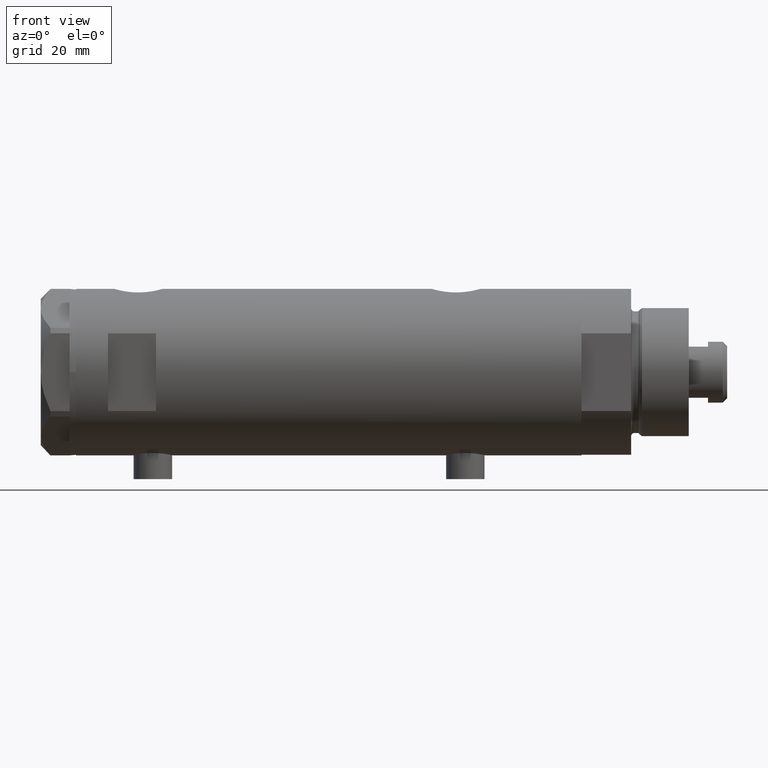
[diagram: clean part render]
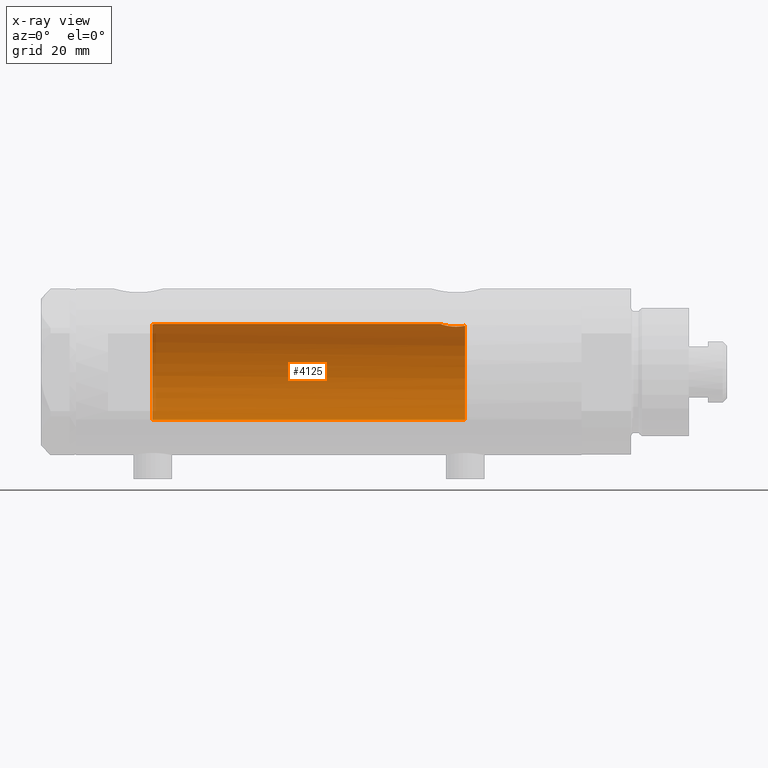
[diagram: x-ray — body ghosted, one internal face saturated and labeled with its STEP entity id]
A machine part, front view, then the same camera in x-ray: the body is ghosted and one INTERNAL B-rep face — a face not visible from any outside direction — is saturated and labeled: STEP entity #4125.
In plain terms, the highlighted cylindrical surface (partial cylindrical patch) has radius 15 mm, axis along (1, 0, -0).
Its self-contained STEP definition (entity closure, byte-faithful):
#244 = VERTEX_POINT ( 'NONE', #4537 ) ;
#251 = CARTESIAN_POINT ( 'NONE',  ( 14.49939476291675078, 3.855488469592460277, -36.74998822577914837 ) ) ;
#301 = CARTESIAN_POINT ( 'NONE',  ( 14.93895715383719569, 1.365440931094926480, 54.77638192761232716 ) ) ;
#303 = CARTESIAN_POINT ( 'NONE',  ( 14.25831405531604545, 4.659025730769700502, -41.16798855846089822 ) ) ;
#345 = CARTESIAN_POINT ( 'NONE',  ( 14.30778609824508152, 4.504821240468950272, -37.89964104205774476 ) ) ;
#388 = CARTESIAN_POINT ( 'NONE',  ( 14.82638779339053947, 2.275571356824483082, 55.15000000000000568 ) ) ;
#400 = EDGE_CURVE ( 'NONE', #4607, #2785, #2811, .T. ) ;
#405 = CARTESIAN_POINT ( 'NONE',  ( 0.000000000000000000, 0.000000000000000000, 55.15000000000000568 ) ) ;
#657 = CARTESIAN_POINT ( 'NONE',  ( 14.23822651595894584, 4.719656459720482644, -40.95110225956646843 ) ) ;
#663 = DIRECTION ( 'NONE',  ( 0.000000000000000000, 0.000000000000000000, -1.000000000000000000 ) ) ;
#674 = ORIENTED_EDGE ( 'NONE', *, *, #3861, .F. ) ;
#706 = CARTESIAN_POINT ( 'NONE',  ( 14.42780822725581125, 4.105572710089619548, -42.36940228115440732 ) ) ;
#730 = CARTESIAN_POINT ( 'NONE',  ( 14.18274079043653124, 4.883732009304969424, -39.63167541567704433 ) ) ;
#844 = ORIENTED_EDGE ( 'NONE', *, *, #4610, .T. ) ;
#940 = B_SPLINE_CURVE_WITH_KNOTS ( 'NONE', 3,
 ( #1849, #3311, #3646, #2217, #1452, #1067, #3233, #4409, #2125, #4460, #2564, #251, #4044, #3691, #345, #2535, #3334, #4067, #730, #1024, #1431, #657, #303, #2956, #2925, #2979, #706, #1746 ),
 .UNSPECIFIED., .F., .F.,
 ( 4, 2, 2, 2, 2, 2, 2, 2, 2, 2, 2, 2, 2, 4 ),
 ( 0.01531448496322443745, 0.01597936247866482348, 0.01664423999410521299, 0.01730911750954559902, 0.01797399502498598853, 0.01930375005586676060, 0.02063350508674753614, 0.02129838260218791524, 0.02196326011762829433, 0.02329301514850904906, 0.02395789266394942815, 0.02462277017938980378, 0.02528764769483018288, 0.02595252521027056197 ),
 .UNSPECIFIED. ) ;
#950 = ORIENTED_EDGE ( 'NONE', *, *, #1355, .F. ) ;
#1024 = CARTESIAN_POINT ( 'NONE',  ( 14.19789541567450364, 4.839422427565552631, -40.29531557750247117 ) ) ;
#1067 = CARTESIAN_POINT ( 'NONE',  ( 14.92306512695867049, 1.532295990539004116, -35.12730056478244478 ) ) ;
#1222 = AXIS2_PLACEMENT_3D ( 'NONE', #4822, #663, #1437 ) ;
#1355 = EDGE_CURVE ( 'NONE', #2785, #244, #2014, .T. ) ;
#1431 = CARTESIAN_POINT ( 'NONE',  ( 14.20808274384303971, 4.809639920165276195, -40.51496246579131366 ) ) ;
#1437 = DIRECTION ( 'NONE',  ( -1.000000000000000000, 0.000000000000000000, 0.000000000000000000 ) ) ;
#1452 = CARTESIAN_POINT ( 'NONE',  ( 14.96070684509191295, 1.105917936056761253, -35.00719211967314237 ) ) ;
#1529 = CIRCLE ( 'NONE', #1222, 15.00000000000000000 ) ;
#1688 = CARTESIAN_POINT ( 'NONE',  ( 14.46277203719950855, 3.978470183374505975, -42.55000000000000426 ) ) ;
#1746 = CARTESIAN_POINT ( 'NONE',  ( 14.46277203719950855, 3.978470183374505975, -42.55000000000000426 ) ) ;
#1797 = CARTESIAN_POINT ( 'NONE',  ( 14.98404286071220781, 0.7911628595372691697, 54.63357750803344004 ) ) ;
#1849 = CARTESIAN_POINT ( 'NONE',  ( 15.00000000000000000, 5.959273468635536151E-16, -34.88499999999999801 ) ) ;
#1947 = VERTEX_POINT ( 'NONE', #4640 ) ;
#2014 = LINE ( 'NONE', #2431, #2301 ) ;
#2070 = ORIENTED_EDGE ( 'NONE', *, *, #3216, .T. ) ;
#2125 = CARTESIAN_POINT ( 'NONE',  ( 14.81695028448457130, 2.344053258630407033, -35.48122781573722051 ) ) ;
#2168 = CARTESIAN_POINT ( 'NONE',  ( 14.85285765243877698, 2.103108122960815507, 55.05873200114292842 ) ) ;
#2176 = AXIS2_PLACEMENT_3D ( 'NONE', #405, #2343, #3051 ) ;
#2197 = CARTESIAN_POINT ( 'NONE',  ( 14.82638779339053947, 2.275571356824483082, 55.15000000000000568 ) ) ;
#2201 = EDGE_LOOP ( 'NONE', ( #950, #2882, #2070, #844, #3641, #674 ) ) ;
#2217 = CARTESIAN_POINT ( 'NONE',  ( 14.97547159671691475, 0.8856171163179413774, -34.96107436056316686 ) ) ;
#2222 = CARTESIAN_POINT ( 'NONE',  ( -15.00000000000000000, 0.000000000000000000, -42.55000000000000426 ) ) ;
#2301 = VECTOR ( 'NONE', #2773, 1000.000000000000000 ) ;
#2343 = DIRECTION ( 'NONE',  ( 0.000000000000000000, 0.000000000000000000, 1.000000000000000000 ) ) ;
#2431 = CARTESIAN_POINT ( 'NONE',  ( 15.00000000000000000, 1.836970198721029589E-15, 78.95000000000000284 ) ) ;
#2535 = CARTESIAN_POINT ( 'NONE',  ( 14.25987224063200465, 4.654266980155760791, -38.31645838593740905 ) ) ;
#2564 = CARTESIAN_POINT ( 'NONE',  ( 14.64710079709035107, 3.249565827911971017, -36.10237283776275063 ) ) ;
#2566 = VERTEX_POINT ( 'NONE', #1688 ) ;
#2773 = DIRECTION ( 'NONE',  ( -0.000000000000000000, -0.000000000000000000, -1.000000000000000000 ) ) ;
#2785 = VERTEX_POINT ( 'NONE', #3102 ) ;
#2811 = B_SPLINE_CURVE_WITH_KNOTS ( 'NONE', 3,
 ( #2197, #2168, #3212, #3643, #301, #1797, #2922, #3308 ),
 .UNSPECIFIED., .F., .F.,
 ( 4, 2, 2, 4 ),
 ( 0.02826119741494479559, 0.02885214443185066258, 0.02944309144875652956, 0.03062498548256826700 ),
 .UNSPECIFIED. ) ;
#2882 = ORIENTED_EDGE ( 'NONE', *, *, #400, .F. ) ;
#2922 = CARTESIAN_POINT ( 'NONE',  ( 14.99999999999999822, 0.3998316629799389399, 54.58500000000000085 ) ) ;
#2925 = CARTESIAN_POINT ( 'NONE',  ( 14.33334483745703203, 4.423389780079196143, -41.78724945987951855 ) ) ;
#2956 = CARTESIAN_POINT ( 'NONE',  ( 14.30582738521795072, 4.511024637967008033, -41.58517547595721453 ) ) ;
#2979 = CARTESIAN_POINT ( 'NONE',  ( 14.39420242489971535, 4.221147702577646932, -42.17871871185445087 ) ) ;
#3051 = DIRECTION ( 'NONE',  ( 1.000000000000000000, 0.000000000000000000, 0.000000000000000000 ) ) ;
#3102 = CARTESIAN_POINT ( 'NONE',  ( 15.00000000000000000, 0.000000000000000000, 54.58500000000000085 ) ) ;
#3180 = CIRCLE ( 'NONE', #2176, 15.00000000000000000 ) ;
#3191 = AXIS2_PLACEMENT_3D ( 'NONE', #3586, #3982, #3559 ) ;
#3212 = CARTESIAN_POINT ( 'NONE',  ( 14.87714698525761214, 1.924825815456623568, 54.97761219789977361 ) ) ;
#3216 = EDGE_CURVE ( 'NONE', #4607, #1947, #3180, .T. ) ;
#3233 = CARTESIAN_POINT ( 'NONE',  ( 14.90012193493785198, 1.740148100968098577, -35.20148967824482611 ) ) ;
#3308 = CARTESIAN_POINT ( 'NONE',  ( 15.00000000000000000, 0.000000000000000000, 54.58500000000000085 ) ) ;
#3311 = CARTESIAN_POINT ( 'NONE',  ( 14.99999999999999822, 0.2215872191885691345, -34.88500000000000512 ) ) ;
#3334 = CARTESIAN_POINT ( 'NONE',  ( 14.23996709707015818, 4.714409263334266242, -38.52876674044652816 ) ) ;
#3344 = CARTESIAN_POINT ( 'NONE',  ( -15.00000000000000000, 0.000000000000000000, 78.95000000000000284 ) ) ;
#3559 = DIRECTION ( 'NONE',  ( -1.000000000000000000, 0.000000000000000000, 0.000000000000000000 ) ) ;
#3562 = EDGE_CURVE ( 'NONE', #4711, #2566, #1529, .T. ) ;
#3586 = CARTESIAN_POINT ( 'NONE',  ( 0.000000000000000000, 0.000000000000000000, 78.95000000000000284 ) ) ;
#3641 = ORIENTED_EDGE ( 'NONE', *, *, #3562, .T. ) ;
#3643 = CARTESIAN_POINT ( 'NONE',  ( 14.92022334814851270, 1.556082286439819828, 54.83634472570267349 ) ) ;
#3646 = CARTESIAN_POINT ( 'NONE',  ( 14.99509227038106296, 0.4430293709771138122, -34.90006686301529726 ) ) ;
#3691 = CARTESIAN_POINT ( 'NONE',  ( 14.33601656325283180, 4.414747171699214157, -37.69405684818107716 ) ) ;
#3765 = DIRECTION ( 'NONE',  ( -0.000000000000000000, -0.000000000000000000, -1.000000000000000000 ) ) ;
#3794 = LINE ( 'NONE', #3344, #4115 ) ;
#3861 = EDGE_CURVE ( 'NONE', #244, #2566, #940, .T. ) ;
#3982 = DIRECTION ( 'NONE',  ( -0.000000000000000000, -0.000000000000000000, -1.000000000000000000 ) ) ;
#4044 = CARTESIAN_POINT ( 'NONE',  ( 14.42796195111116830, 4.108450791336244023, -37.10736184290816198 ) ) ;
#4067 = CARTESIAN_POINT ( 'NONE',  ( 14.19413554982521219, 4.851369549374611623, -39.17746179061393264 ) ) ;
#4115 = VECTOR ( 'NONE', #3765, 1000.000000000000000 ) ;
#4125 = ADVANCED_FACE ( 'NONE', ( #4194 ), #4590, .F. ) ;
#4194 = FACE_OUTER_BOUND ( 'NONE', #2201, .T. ) ;
#4409 = CARTESIAN_POINT ( 'NONE',  ( 14.84719462287499958, 2.145357993387301043, -35.37798666051606489 ) ) ;
#4460 = CARTESIAN_POINT ( 'NONE',  ( 14.72004460873233000, 2.909758128378248987, -35.82614485536702631 ) ) ;
#4537 = CARTESIAN_POINT ( 'NONE',  ( 15.00000000000000000, 5.959273468635536151E-16, -34.88499999999999801 ) ) ;
#4590 = CYLINDRICAL_SURFACE ( 'NONE', #3191, 15.00000000000000000 ) ;
#4607 = VERTEX_POINT ( 'NONE', #388 ) ;
#4610 = EDGE_CURVE ( 'NONE', #1947, #4711, #3794, .T. ) ;
#4640 = CARTESIAN_POINT ( 'NONE',  ( -15.00000000000000000, 0.000000000000000000, 55.15000000000000568 ) ) ;
#4711 = VERTEX_POINT ( 'NONE', #2222 ) ;
#4822 = CARTESIAN_POINT ( 'NONE',  ( 0.000000000000000000, 0.000000000000000000, -42.55000000000000426 ) ) ;